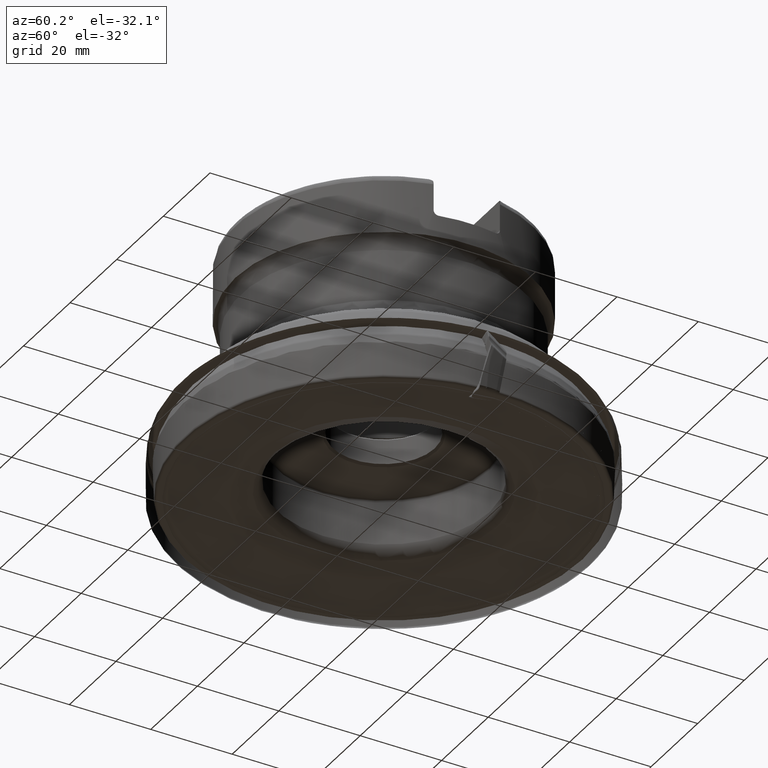
[diagram: clean part render]
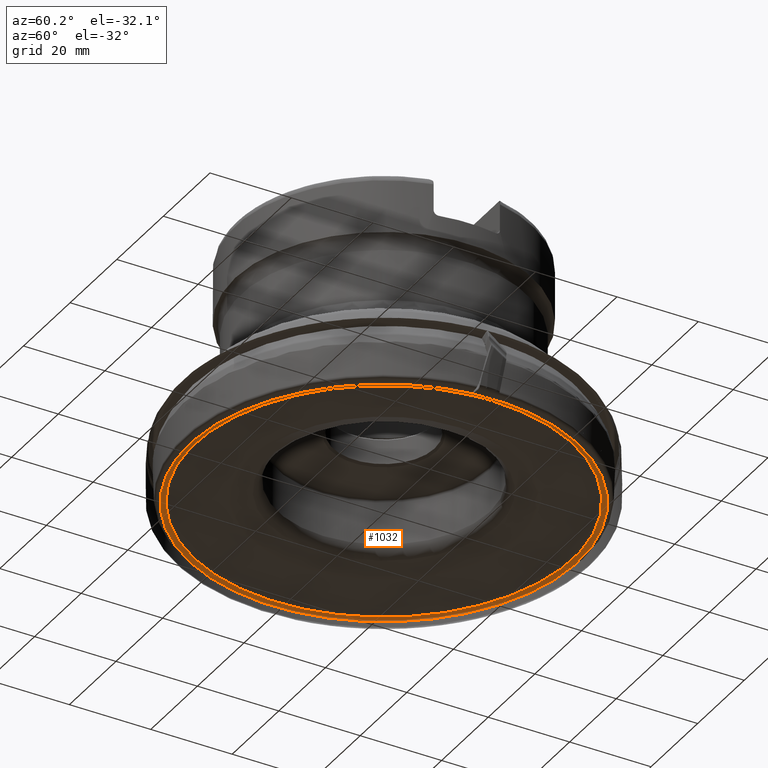
[diagram: same view with one face highlighted and labeled with its STEP entity id]
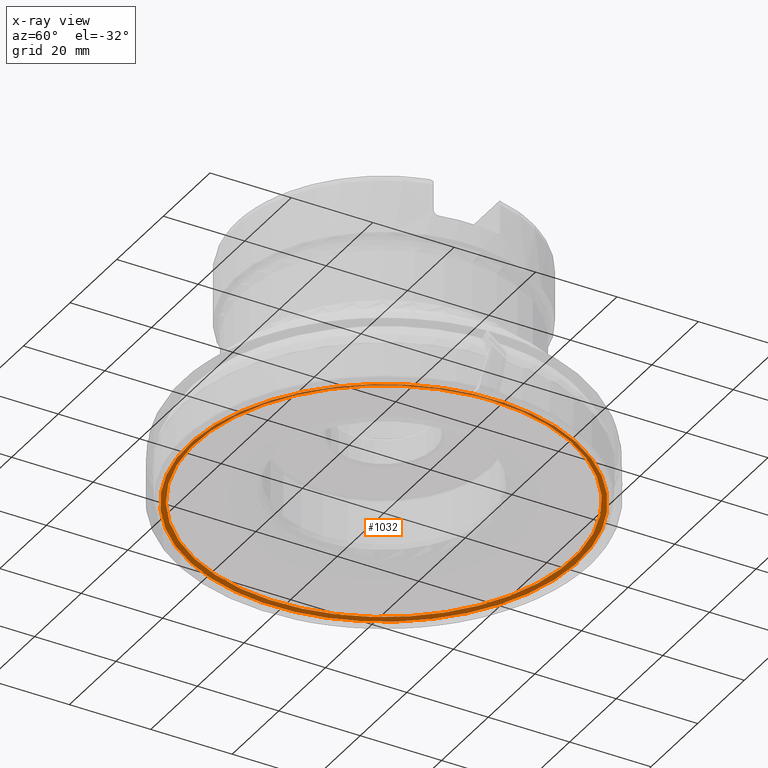
[diagram: x-ray of the same camera — body ghosted, the highlighted face saturated]
A machine part, auxiliary view. The second image highlights one B-rep face of the part: STEP entity #1032.
The next image is the same camera in x-ray: the body ghosted, the highlighted face saturated — about 0% of this face is hidden behind the body in this view.
In plain terms, the highlighted face is a SurfaceOfRevolution surface.
Its self-contained STEP definition (entity closure, byte-faithful):
#122=SURFACE_OF_REVOLUTION('',#4584,#143);
#143=AXIS1_PLACEMENT('',#17902,#5311);
#167=(
BOUNDED_CURVE()
B_SPLINE_CURVE(3,(#17881,#17882,#17883,#17884,#17885,#17886,#17887),
 .UNSPECIFIED.,.T.,.F.)
B_SPLINE_CURVE_WITH_KNOTS((1,3,3,3,1),(-0.5,0.,0.5,1.,1.5),
 .UNSPECIFIED.)
CURVE()
GEOMETRIC_REPRESENTATION_ITEM()
RATIONAL_B_SPLINE_CURVE((1.,0.333333333333333,0.333333333333333,1.,0.333333333333333,
0.333333333333333,1.))
REPRESENTATION_ITEM('')
);
#540=FACE_BOUND('',#1671,.T.);
#541=FACE_BOUND('',#1672,.T.);
#721=CIRCLE('',#4811,46.4843174294981);
#1032=ADVANCED_FACE('',(#540,#541),#122,.F.);
#1671=EDGE_LOOP('',(#3043));
#1672=EDGE_LOOP('',(#3044));
#3043=ORIENTED_EDGE('',*,*,#4102,.T.);
#3044=ORIENTED_EDGE('',*,*,#4103,.F.);
#3452=VERTEX_POINT('',#17888);
#3453=VERTEX_POINT('',#17896);
#4102=EDGE_CURVE('',#3452,#3452,#167,.T.);
#4103=EDGE_CURVE('',#3453,#3453,#721,.T.);
#4584=B_SPLINE_CURVE_WITH_KNOTS('',3,(#17897,#17898,#17899,#17900,#17901),
 .UNSPECIFIED.,.F.,.F.,(4,1,4),(0.,0.5,1.),.UNSPECIFIED.);
#4811=AXIS2_PLACEMENT_3D('',#17895,#5309,#5310);
#5309=DIRECTION('',(0.,0.,1.));
#5310=DIRECTION('',(1.,0.,0.));
#5311=DIRECTION('',(0.,0.,1.));
#17881=CARTESIAN_POINT('',(47.4059536187627,-5.28145740600879,0.228901089286858));
#17882=CARTESIAN_POINT('',(57.9688684307803,89.5304498315166,0.228901089286858));
#17883=CARTESIAN_POINT('',(-36.8430388067451,100.093364643534,0.228901089286858));
#17884=CARTESIAN_POINT('',(-47.4059536187627,5.28145740600878,0.228901089286858));
#17885=CARTESIAN_POINT('',(-57.9688684307802,-89.5304498315166,0.228901089286858));
#17886=CARTESIAN_POINT('',(36.8430388067451,-100.093364643534,0.228901089286858));
#17887=CARTESIAN_POINT('',(47.4059536187627,-5.28145740600879,0.228901089286858));
#17888=CARTESIAN_POINT('',(47.4059267102626,-5.28145440815543,0.228860505470782));
#17895=CARTESIAN_POINT('',(0.,0.,0.624040819441003));
#17896=CARTESIAN_POINT('',(46.4843174294981,0.,0.624040819441003));
#17897=CARTESIAN_POINT('',(46.2374975637348,-4.78504818618455,0.624037580003672));
#17898=CARTESIAN_POINT('',(46.4423294171413,-4.86188963615729,0.617688427657683));
#17899=CARTESIAN_POINT('',(46.8601210838517,-5.03316078394559,0.540681091906522));
#17900=CARTESIAN_POINT('',(47.2379063182537,-5.20414630567383,0.346070954646484));
#17901=CARTESIAN_POINT('',(47.40602057614,-5.28146234660395,0.228856316471544));
#17902=CARTESIAN_POINT('',(0.,0.,0.));